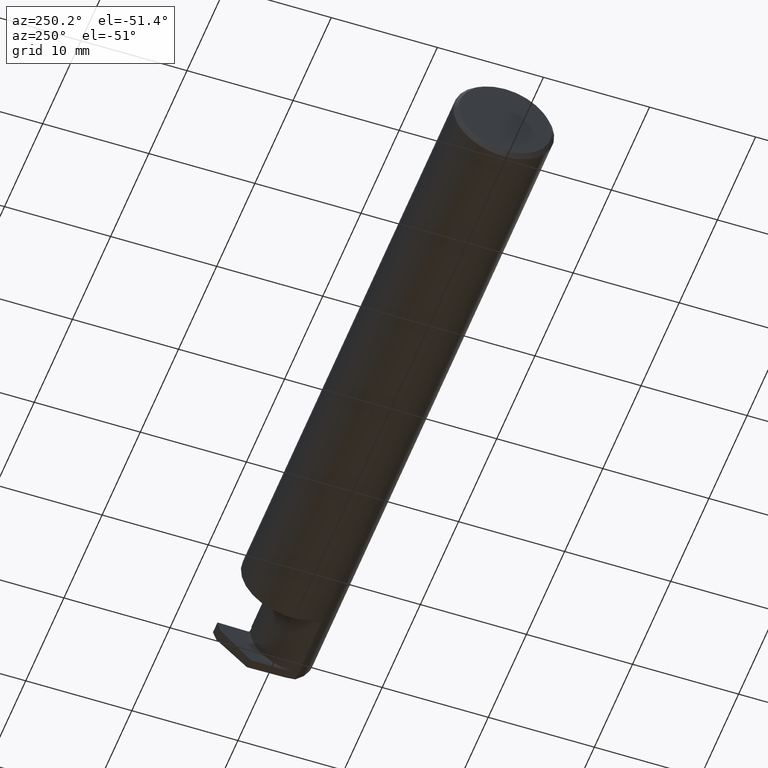
[diagram: clean part render]
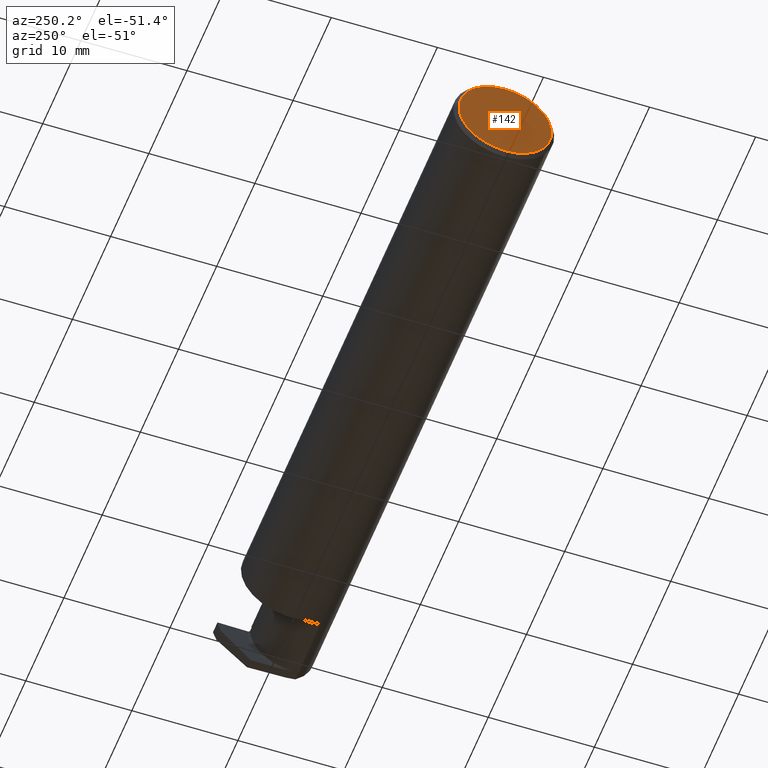
[diagram: same view with one face highlighted and labeled with its STEP entity id]
A machine part, auxiliary view. The second image highlights one B-rep face of the part: STEP entity #142.
In plain terms, the highlighted planar face has unit normal (1, 0, 0).
Its self-contained STEP definition (entity closure, byte-faithful):
#93 = DIRECTION ( 'NONE',  ( 0.000000000000000000, 0.000000000000000000, -1.000000000000000000 ) ) ;
#107 = PLANE ( 'NONE',  #199 ) ;
#142 = ADVANCED_FACE ( 'NONE', ( #735 ), #107, .F. ) ;
#199 = AXIS2_PLACEMENT_3D ( 'NONE', #808, #804, #93 ) ;
#245 = CARTESIAN_POINT ( 'NONE',  ( 0.000000000000000000, 2.202527268266524596E-17, 0.1723499999999999754 ) ) ;
#246 = EDGE_CURVE ( 'NONE', #382, #885, #912, .T. ) ;
#299 = AXIS2_PLACEMENT_3D ( 'NONE', #744, #336, #542 ) ;
#336 = DIRECTION ( 'NONE',  ( -1.000000000000000000, -0.000000000000000000, -0.000000000000000000 ) ) ;
#358 = CARTESIAN_POINT ( 'NONE',  ( 0.000000000000000000, 0.000000000000000000, 0.000000000000000000 ) ) ;
#382 = VERTEX_POINT ( 'NONE', #837 ) ;
#400 = AXIS2_PLACEMENT_3D ( 'NONE', #358, #561, #488 ) ;
#402 = ORIENTED_EDGE ( 'NONE', *, *, #246, .T. ) ;
#456 = CIRCLE ( 'NONE', #400, 0.1723499999999999754 ) ;
#488 = DIRECTION ( 'NONE',  ( 0.000000000000000000, 0.000000000000000000, 1.000000000000000000 ) ) ;
#542 = DIRECTION ( 'NONE',  ( 0.000000000000000000, 0.000000000000000000, 1.000000000000000000 ) ) ;
#561 = DIRECTION ( 'NONE',  ( -1.000000000000000000, -0.000000000000000000, -0.000000000000000000 ) ) ;
#735 = FACE_OUTER_BOUND ( 'NONE', #736, .T. ) ;
#736 = EDGE_LOOP ( 'NONE', ( #402, #809 ) ) ;
#744 = CARTESIAN_POINT ( 'NONE',  ( 0.000000000000000000, 0.000000000000000000, 0.000000000000000000 ) ) ;
#773 = EDGE_CURVE ( 'NONE', #885, #382, #456, .T. ) ;
#804 = DIRECTION ( 'NONE',  ( 1.000000000000000000, 0.000000000000000000, 0.000000000000000000 ) ) ;
#808 = CARTESIAN_POINT ( 'NONE',  ( 0.000000000000000000, 0.000000000000000000, 0.000000000000000000 ) ) ;
#809 = ORIENTED_EDGE ( 'NONE', *, *, #773, .T. ) ;
#837 = CARTESIAN_POINT ( 'NONE',  ( 0.000000000000000000, 0.000000000000000000, -0.1723499999999999754 ) ) ;
#885 = VERTEX_POINT ( 'NONE', #245 ) ;
#912 = CIRCLE ( 'NONE', #299, 0.1723499999999999754 ) ;